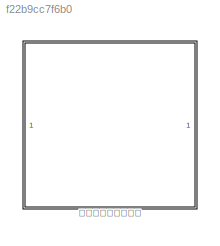
MODEL slx_f22b9cc7f6b0
KIND model
CONFIG AbsTol = auto
CONFIG EnableMultiTasking = off
CONFIG FixedStep = auto
CONFIG MaxStep = auto
CONFIG MinStep = auto
CONFIG RelTol = 1e-3
CONFIG SampleTimeConstraint = Unconstrained
CONFIG SolverName = VariableStepAuto
CONFIG StartTime = 0.0
CONFIG StopTime = 10.0
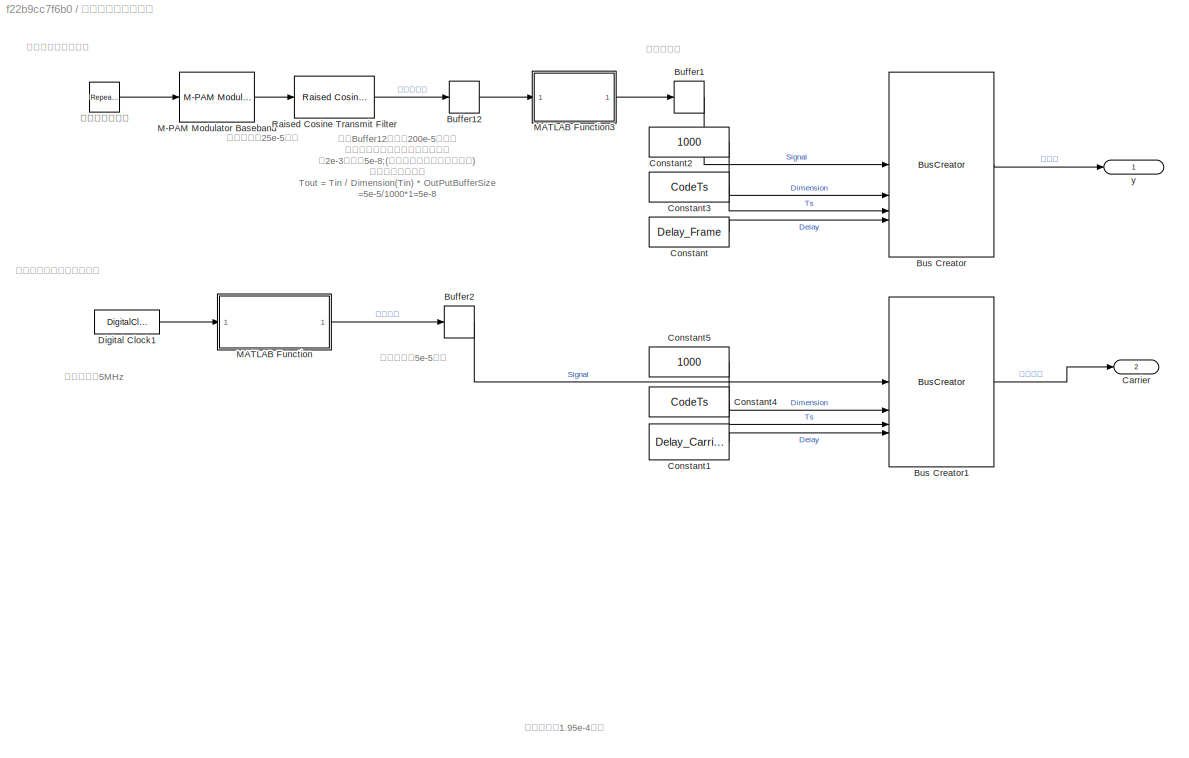
BLOCK [SubSystem] 帧信号基带调制模块
  AttributesFormatString = 帧信号的Delay = %<Delay_Frame>\n载波信号的Delay = %<Delay_Carrier>\n载波信号的采样速率=%<T_Carrier>\n帧信号的采样速率=%<T_Frame>
  TreatAsAtomicUnit = on
BLOCK [Buffer] 帧信号基带调制模块/Buffer1
  N = N
  OutputFrames = off
BLOCK [Buffer] 帧信号基带调制模块/Buffer12
  N = 4 * N
  OutputFrames = off
BLOCK [Buffer] 帧信号基带调制模块/Buffer2
  AttributesFormatString = Delay = %<N> * CarrierTs
  N = N
  OutputFrames = off
BLOCK [BusCreator] 帧信号基带调制模块/Bus Creator
  DisplayOption = bar
  InheritFromInputs = on
  Inputs = Signal,Dimension,Ts,Delay
  NonVirtualBus = on
  OutDataTypeStr = Bus: SignalBus1
BLOCK [BusCreator] 帧信号基带调制模块/Bus Creator1
  DisplayOption = bar
  InheritFromInputs = on
  Inputs = Signal,Dimension,Ts,Delay
  NonVirtualBus = on
  OutDataTypeStr = Bus: SignalBus1
BLOCK [Outport] 帧信号基带调制模块/Carrier
  IconDisplay = Signal name
  OutDataTypeStr = Bus: SignalBus1
  Port = 2
BLOCK [Constant] 帧信号基带调制模块/Constant
  SampleTime = CodeTs
  Value = Delay_Frame
BLOCK [Constant] 帧信号基带调制模块/Constant1
  SampleTime = CodeTs
  Value = Delay_Carrier
BLOCK [Constant] 帧信号基带调制模块/Constant2
  SampleTime = CodeTs
  Value = 1000
BLOCK [Constant] 帧信号基带调制模块/Constant3
  SampleTime = CodeTs
  Value = CodeTs
BLOCK [Constant] 帧信号基带调制模块/Constant4
  SampleTime = -1
  Value = CodeTs
BLOCK [Constant] 帧信号基带调制模块/Constant5
  SampleTime = CodeTs
  Value = 1000
BLOCK [DigitalClock] 帧信号基带调制模块/Digital Clock1
  AttributesFormatString = CarrierTs = %<SampleTime>\nCarruerFreq = 1 / CarrierTs
  SampleTime = CarrierTs
BLOCK [Reference] 帧信号基带调制模块/M-PAM Modulator Baseband  REF=commdigbbndam3/M-PAM
Modulator
Baseband
  SourceBlock = commdigbbndam3/M-PAM\nModulator\nBaseband
  SourceType = M-PAM Modulator Baseband
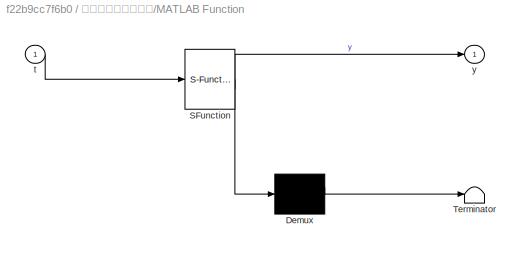
BLOCK [SubSystem] 帧信号基带调制模块/MATLAB Function
  ErrorFcn = Stateflow.Translate.translate
  InitFcn = f_chirp_min=4.8e6;\nf_chirp_max=5.2e6;\nT_chirp=4e-4;
  LibrarySourceBlock = simulink/User-Defined\nFunctions/MATLAB Function
  PermitHierarchicalResolution = ExplicitOnly
  SFBlockType = MATLAB Function
  TreatAsAtomicUnit = on
BLOCK [Demux] 帧信号基带调制模块/MATLAB Function/ Demux 
  Outputs = 1
BLOCK [S-Function] 帧信号基带调制模块/MATLAB Function/ SFunction 
  EnableBusSupport = on
  FunctionName = sf_sfun
  Parameters = T_chirp,f_chirp_max,f_chirp_min
  PortCounts = [1 2]
  SFcnIsStateOwnerBlock = off
  SFunctionDeploymentMode = off
  Tag = Stateflow S-Function 2
BLOCK [Terminator] 帧信号基带调制模块/MATLAB Function/ Terminator 
BLOCK [Inport] 帧信号基带调制模块/MATLAB Function/t
BLOCK [Outport] 帧信号基带调制模块/MATLAB Function/y
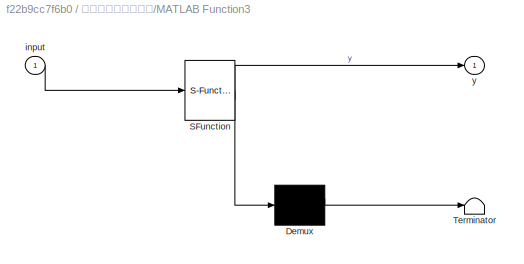
BLOCK [SubSystem] 帧信号基带调制模块/MATLAB Function3
  ErrorFcn = Stateflow.Translate.translate
  LibrarySourceBlock = simulink/User-Defined\nFunctions/MATLAB Function
  PermitHierarchicalResolution = ExplicitOnly
  SFBlockType = MATLAB Function
  TreatAsAtomicUnit = on
BLOCK [Demux] 帧信号基带调制模块/MATLAB Function3/ Demux 
  Outputs = 1
BLOCK [S-Function] 帧信号基带调制模块/MATLAB Function3/ SFunction 
  EnableBusSupport = on
  FunctionName = sf_sfun
  PortCounts = [1 2]
  SFcnIsStateOwnerBlock = off
  SFunctionDeploymentMode = off
  Tag = Stateflow S-Function 5
BLOCK [Terminator] 帧信号基带调制模块/MATLAB Function3/ Terminator 
BLOCK [Inport] 帧信号基带调制模块/MATLAB Function3/input
BLOCK [Outport] 帧信号基带调制模块/MATLAB Function3/y
BLOCK [Reference] 帧信号基带调制模块/Raised Cosine Transmit Filter  REF=commfilt2/Raised Cosine
Transmit Filter
  SourceBlock = commfilt2/Raised Cosine\nTransmit Filter
  SourceType = Raised Cosine Transmit Filter
BLOCK [Outport] 帧信号基带调制模块/y
  IconDisplay = Signal name
  OutDataTypeStr = Bus: SignalBus1
BLOCK [Reference] 帧信号基带调制模块/帧信号编码码元  REF=simulink/Sources/Repeating
Sequence
Stair
  AttributesFormatString = 帧信号编码码元 = %<OutValues>\n采样时间 = %<tsamp>
  SourceBlock = simulink/Sources/Repeating\nSequence\nStair
  SourceType = Repeating Sequence Stair
ANNOTATION 帧信号基带调制模块: 此处 Buffer12产生了200e-5的延时 同时将信号的 采样速率进行了改变 从2e-3变成了5e-8;( 慢采样到快采样不产生延时 ) 速率变换公式 为： Tout = Tin / Dimension(Tin) * OutPutBufferSize =5e-5/1000*1=5e-8
ANNOTATION 帧信号基带调制模块: 帧信号基带调制模块
ANNOTATION 帧信号基带调制模块: 帧信号对应的本地载波生成
ANNOTATION 帧信号基带调制模块: 本地载波：5MHz
ANNOTATION 帧信号基带调制模块: 此处产生了1.95e-4延时
ANNOTATION 帧信号基带调制模块: 此处产生了25e-5延时
ANNOTATION 帧信号基带调制模块: 此处产生了5e-5延时
ANNOTATION 帧信号基带调制模块: 此处无延时
LINE 帧信号基带调制模块/Buffer12:1 -> 帧信号基带调制模块/MATLAB Function3:1
LINE 帧信号基带调制模块/Buffer1:1 -> 帧信号基带调制模块/Bus Creator:1
LINE 帧信号基带调制模块/Buffer2:1 -> 帧信号基带调制模块/Bus Creator1:1
LINE 帧信号基带调制模块/Bus Creator1:1 -> 帧信号基带调制模块/Carrier:1
LINE 帧信号基带调制模块/Bus Creator:1 -> 帧信号基带调制模块/y:1
LINE 帧信号基带调制模块/Constant1:1 -> 帧信号基带调制模块/Bus Creator1:4
LINE 帧信号基带调制模块/Constant2:1 -> 帧信号基带调制模块/Bus Creator:2
LINE 帧信号基带调制模块/Constant3:1 -> 帧信号基带调制模块/Bus Creator:3
LINE 帧信号基带调制模块/Constant4:1 -> 帧信号基带调制模块/Bus Creator1:3
LINE 帧信号基带调制模块/Constant5:1 -> 帧信号基带调制模块/Bus Creator1:2
LINE 帧信号基带调制模块/Constant:1 -> 帧信号基带调制模块/Bus Creator:4
LINE 帧信号基带调制模块/Digital Clock1:1 -> 帧信号基带调制模块/MATLAB Function:1
LINE 帧信号基带调制模块/M-PAM Modulator Baseband:1 -> 帧信号基带调制模块/Raised Cosine Transmit Filter:1
LINE 帧信号基带调制模块/MATLAB Function3:1 -> 帧信号基带调制模块/Buffer1:1
LINE 帧信号基带调制模块/MATLAB Function:1 -> 帧信号基带调制模块/Buffer2:1
LINE 帧信号基带调制模块/Raised Cosine Transmit Filter:1 -> 帧信号基带调制模块/Buffer12:1
LINE 帧信号基带调制模块/帧信号编码码元:1 -> 帧信号基带调制模块/M-PAM Modulator Baseband:1
CHART 帧信号基带调制模块/MATLAB Function states=1 transitions=1
  STATE_LABEL 'eML_blk_kernel()'
  STATE_LABEL 'SCRIPT:\n% function y = carrierGenerator(t)\n%     fc = 5e6;\n%     y = exp(1i*2*pi*fc*t);\n\nfunction y = carrierGenerator(t, f_chirp_min, f_chirp_max, T_chirp)\n    k_chirp = (f_chirp_max-f_chirp_min)/T_chirp;\n    t = mod(t,T_chirp);\n    y = exp(1i*2*pi*(f_chirp_min*t+0.5*k_chirp*t^2));\n\nend\n'
CHART 帧信号基带调制模块/MATLAB Function3 states=1 transitions=1
  STATE_LABEL 'eML_blk_kernel()'
  STATE_LABEL 'SCRIPT:\n% function y = carrierGenerator(t)\n%     fc = 5e6;\n%     y = exp(1i*2*pi*fc*t);\n\nfunction y = rateTransition(input)\n    p = 10;\n    q = 1;\n    y = resample(input,p,q);\n%     y(1:100) = repmat(y(100),1,100);\n%     y(end-99:end) = repmat(y(end-99),1,100);\nend\n'
CHART  states=0 transitions=0
CHART  states=0 transitions=0
